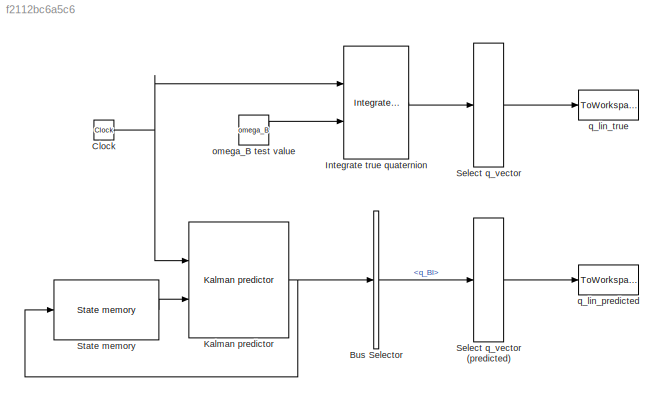
MODEL slx_f2112bc6a5c6
KIND model
BLOCK [BusSelector] Bus Selector
  OutputSignals = q_BI
  Ports = [1, 1]
BLOCK [Clock] Clock
BLOCK [Reference] Integrate true quaternion  REF=lib_gyro_fusion/Integrate true quaternion  (lib defined in slx_a4b6311b9d1d)
  Ports = [2, 1]
  SourceBlock = lib_gyro_fusion/Integrate true quaternion
  q_BI_init = q_init
BLOCK [Reference] Kalman predictor  REF=lib_gyro_fusion/Kalman predictor  (lib defined in slx_a4b6311b9d1d)
  Ports = [2, 1]
  SourceBlock = lib_gyro_fusion/Kalman predictor
  omega_B_noise = [0, 0, 0]
  omega_I_bias_noise = 0
  q_noise = 0
BLOCK [Selector] Select q_vector
  IndexOptions = Starting index (dialog)
  Indices = 2
  InputPortWidth = 4
  OutputSizes = 3
  Ports = [1, 1]
BLOCK [Selector] Select q_vector (predicted)
  IndexOptions = Starting index (dialog)
  Indices = 2
  InputPortWidth = 4
  OutputSizes = 3
  Ports = [1, 1]
BLOCK [Reference] State memory  REF=lib_gyro_fusion/State memory  (lib defined in slx_a4b6311b9d1d)
  P_full_init = eye(9)
  Ports = [1, 1]
  SourceBlock = lib_gyro_fusion/State memory
  omega_B_init = omega_B
  omega_I_bias_init = omega_bias_I
  q_BI_init = q_init
BLOCK [Constant] omega_B test value
  Value = omega_B
BLOCK [ToWorkspace] q_lin_predicted
  FixptAsFi = on
  MaxDataPoints = inf
  Ports = [1]
  SampleTime = -1
  Save2DSignal = 3-D array (concatenate along third dimension)
  SaveFormat = Timeseries
  VariableName = q_lin_predicted
BLOCK [ToWorkspace] q_lin_true
  FixptAsFi = on
  MaxDataPoints = inf
  Ports = [1]
  SampleTime = -1
  Save2DSignal = 3-D array (concatenate along third dimension)
  SaveFormat = Timeseries
  VariableName = q_lin_true
LINE Bus Selector:1 -> Select q_vector (predicted):1
NET Clock:1 -> Integrate true quaternion:1, Kalman predictor:1
LINE Integrate true quaternion:1 -> Select q_vector:1
NET Kalman predictor:1 -> Bus Selector:1, State memory:1
LINE Select q_vector (predicted):1 -> q_lin_predicted:1
LINE Select q_vector:1 -> q_lin_true:1
LINE State memory:1 -> Kalman predictor:2
LINE omega_B test value:1 -> Integrate true quaternion:2
note: NET lines group one-source signal fan-out (src -> all destinations, sorted); 1:1 wires keep LINE
